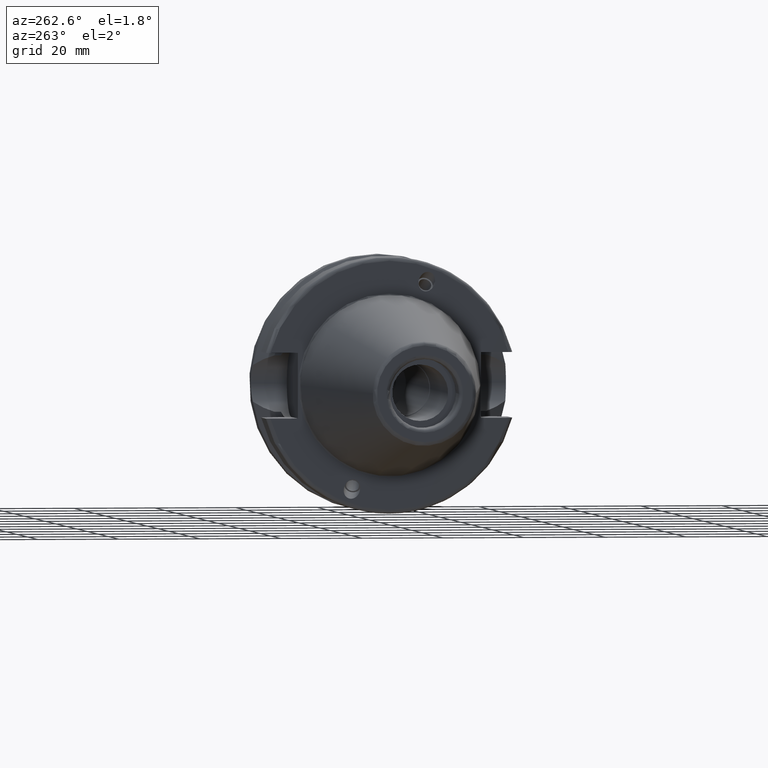
[diagram: clean part render]
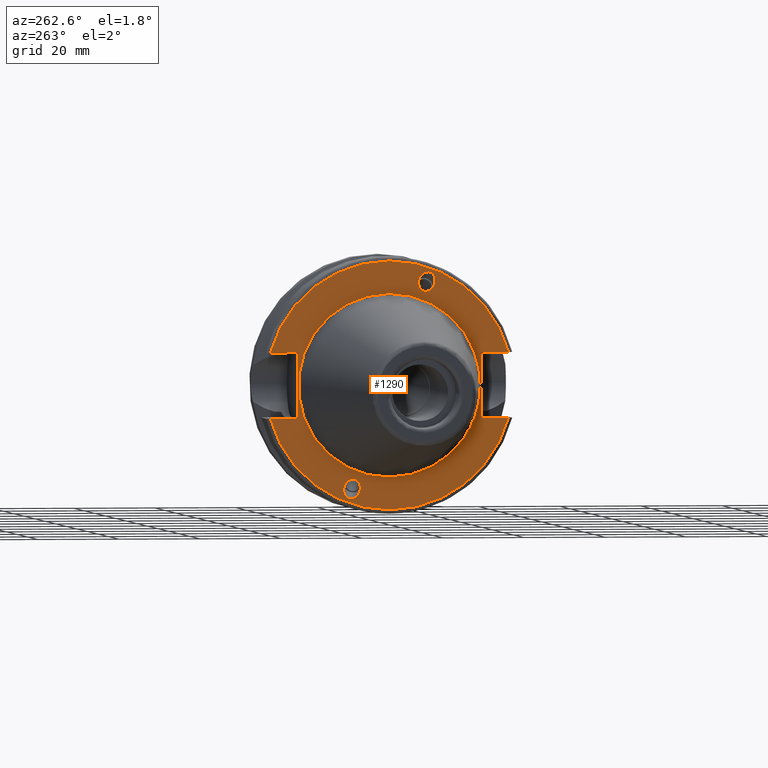
[diagram: same view with one face highlighted and labeled with its STEP entity id]
A machine part, auxiliary view. The second image highlights one B-rep face of the part: STEP entity #1290.
In plain terms, the highlighted planar face has unit normal (-1, 0, 0).
Its self-contained STEP definition (entity closure, byte-faithful):
#57=FACE_BOUND('',#294,.T.);
#58=FACE_BOUND('',#295,.T.);
#59=FACE_BOUND('',#296,.T.);
#80=ELLIPSE('',#1390,2.44154917752291,2.);
#89=ELLIPSE('',#1413,2.44154917752291,2.);
#202=FACE_OUTER_BOUND('',#293,.T.);
#293=EDGE_LOOP('',(#1155,#1156,#1157,#1158,#1159,#1160,#1161,#1162));
#294=EDGE_LOOP('',(#1163));
#295=EDGE_LOOP('',(#1164));
#296=EDGE_LOOP('',(#1165));
#353=CIRCLE('',#1441,30.5);
#372=CIRCLE('',#1476,22.5);
#373=CIRCLE('',#1478,30.5);
#416=LINE('',#2311,#482);
#420=LINE('',#2319,#486);
#423=LINE('',#2339,#489);
#434=LINE('',#2439,#500);
#437=LINE('',#2460,#503);
#439=LINE('',#2463,#505);
#482=VECTOR('',#1730,10.);
#486=VECTOR('',#1736,10.);
#489=VECTOR('',#1741,10.);
#500=VECTOR('',#1796,10.);
#503=VECTOR('',#1801,10.);
#505=VECTOR('',#1805,10.);
#556=VERTEX_POINT('',#2143);
#571=VERTEX_POINT('',#2224);
#589=VERTEX_POINT('',#2299);
#590=VERTEX_POINT('',#2310);
#592=VERTEX_POINT('',#2316);
#593=VERTEX_POINT('',#2318);
#608=VERTEX_POINT('',#2399);
#615=VERTEX_POINT('',#2436);
#616=VERTEX_POINT('',#2438);
#620=VERTEX_POINT('',#2459);
#634=VERTEX_POINT('',#2511);
#701=EDGE_CURVE('',#556,#556,#80,.T.);
#724=EDGE_CURVE('',#571,#571,#89,.T.);
#745=EDGE_CURVE('',#590,#589,#416,.T.);
#749=EDGE_CURVE('',#593,#592,#420,.T.);
#754=EDGE_CURVE('',#592,#590,#423,.T.);
#774=EDGE_CURVE('',#593,#608,#353,.T.);
#784=EDGE_CURVE('',#616,#615,#434,.T.);
#789=EDGE_CURVE('',#620,#608,#437,.T.);
#791=EDGE_CURVE('',#615,#620,#439,.T.);
#815=EDGE_CURVE('',#634,#634,#372,.T.);
#816=EDGE_CURVE('',#616,#589,#373,.T.);
#1155=ORIENTED_EDGE('',*,*,#745,.T.);
#1156=ORIENTED_EDGE('',*,*,#816,.F.);
#1157=ORIENTED_EDGE('',*,*,#784,.T.);
#1158=ORIENTED_EDGE('',*,*,#791,.T.);
#1159=ORIENTED_EDGE('',*,*,#789,.T.);
#1160=ORIENTED_EDGE('',*,*,#774,.F.);
#1161=ORIENTED_EDGE('',*,*,#749,.T.);
#1162=ORIENTED_EDGE('',*,*,#754,.T.);
#1163=ORIENTED_EDGE('',*,*,#701,.T.);
#1164=ORIENTED_EDGE('',*,*,#724,.T.);
#1165=ORIENTED_EDGE('',*,*,#815,.T.);
#1219=PLANE('',#1477);
#1290=ADVANCED_FACE('',(#202,#57,#58,#59),#1219,.T.);
#1390=AXIS2_PLACEMENT_3D('',#2145,#1652,#1653);
#1413=AXIS2_PLACEMENT_3D('',#2226,#1705,#1706);
#1441=AXIS2_PLACEMENT_3D('',#2400,#1783,#1784);
#1476=AXIS2_PLACEMENT_3D('',#2513,#1870,#1871);
#1477=AXIS2_PLACEMENT_3D('',#2514,#1872,#1873);
#1478=AXIS2_PLACEMENT_3D('',#2515,#1874,#1875);
#1652=DIRECTION('center_axis',(1.,0.,0.));
#1653=DIRECTION('ref_axis',(5.68400912649004E-17,-0.342020143325671,0.939692620785908));
#1705=DIRECTION('center_axis',(1.,0.,0.));
#1706=DIRECTION('ref_axis',(5.68400912649004E-17,0.342020143325671,-0.939692620785908));
#1730=DIRECTION('',(0.,-1.,0.));
#1736=DIRECTION('',(0.,1.,0.));
#1741=DIRECTION('',(0.,0.,1.));
#1783=DIRECTION('center_axis',(1.,0.,0.));
#1784=DIRECTION('ref_axis',(0.,0.,-1.));
#1796=DIRECTION('',(0.,-1.,0.));
#1801=DIRECTION('',(0.,1.,0.));
#1805=DIRECTION('',(0.,0.,-1.));
#1870=DIRECTION('center_axis',(1.,0.,0.));
#1871=DIRECTION('ref_axis',(0.,0.,-1.));
#1872=DIRECTION('center_axis',(-1.,0.,0.));
#1873=DIRECTION('ref_axis',(0.,0.,1.));
#1874=DIRECTION('center_axis',(1.,0.,0.));
#1875=DIRECTION('ref_axis',(0.,0.,-1.));
#2143=CARTESIAN_POINT('',(1.99999999999999,-8.39948487015999,23.0773950158154));
#2145=CARTESIAN_POINT('Origin',(1.99999999999999,-9.23454386979305,25.3717007612195));
#2224=CARTESIAN_POINT('',(1.99999999999999,8.39948487015999,-23.0773950158154));
#2226=CARTESIAN_POINT('Origin',(1.99999999999999,9.23454386979305,-25.3717007612195));
#2299=CARTESIAN_POINT('',(1.99999999999999,-29.4184890842477,8.05));
#2310=CARTESIAN_POINT('',(1.99999999999999,-22.6,8.05));
#2311=CARTESIAN_POINT('',(1.99999999999999,3.95,8.05));
#2316=CARTESIAN_POINT('',(1.99999999999999,-22.6,-8.05));
#2318=CARTESIAN_POINT('',(1.99999999999999,-29.4184890842477,-8.05));
#2319=CARTESIAN_POINT('',(1.99999999999999,3.95,-8.05));
#2339=CARTESIAN_POINT('',(1.99999999999999,-22.6,0.));
#2399=CARTESIAN_POINT('',(1.99999999999999,29.4184890842477,-8.05));
#2400=CARTESIAN_POINT('Origin',(1.99999999999999,0.,0.));
#2436=CARTESIAN_POINT('',(1.99999999999999,22.6,8.05));
#2438=CARTESIAN_POINT('',(1.99999999999999,29.4184890842477,8.05));
#2439=CARTESIAN_POINT('',(1.99999999999999,26.55,8.05));
#2459=CARTESIAN_POINT('',(1.99999999999999,22.6,-8.05));
#2460=CARTESIAN_POINT('',(1.99999999999999,26.55,-8.05));
#2463=CARTESIAN_POINT('',(1.99999999999999,22.6,0.));
#2511=CARTESIAN_POINT('',(2.,-2.75545529808154E-15,22.5));
#2513=CARTESIAN_POINT('Origin',(2.,0.,0.));
#2514=CARTESIAN_POINT('Origin',(1.99999999999999,30.5,0.));
#2515=CARTESIAN_POINT('Origin',(1.99999999999999,0.,0.));